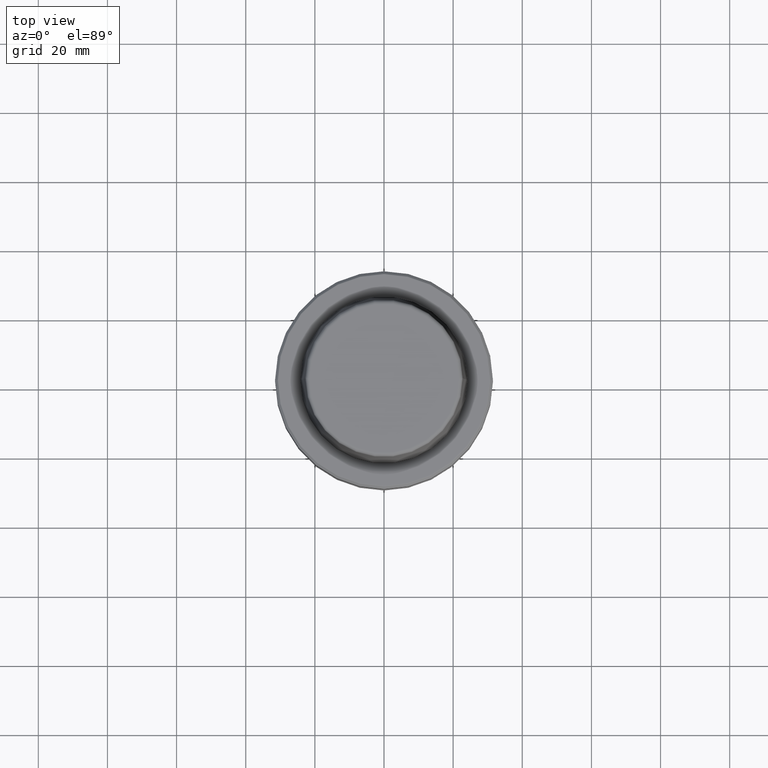
[diagram: clean part render]
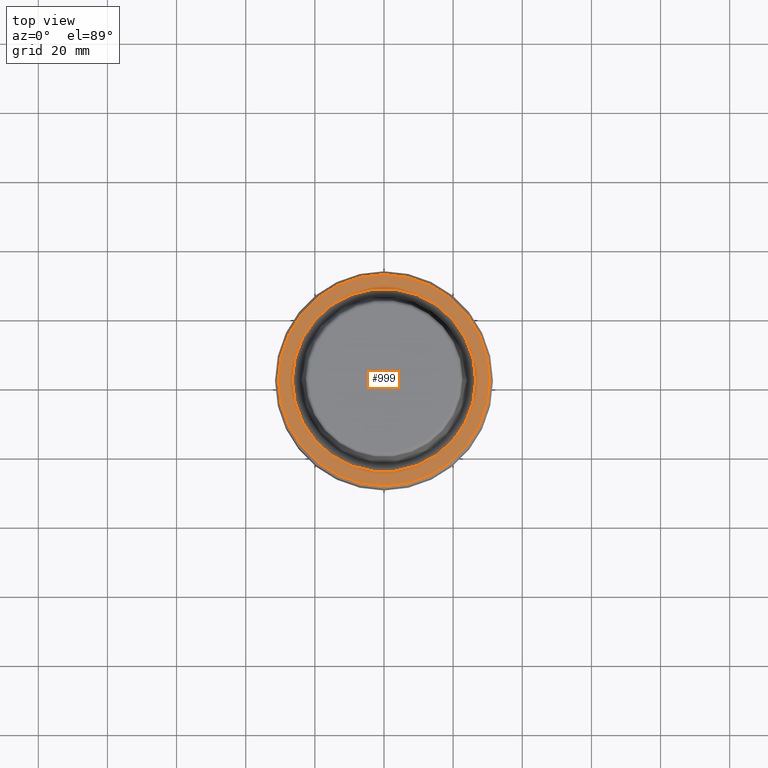
[diagram: same view with one face highlighted and labeled with its STEP entity id]
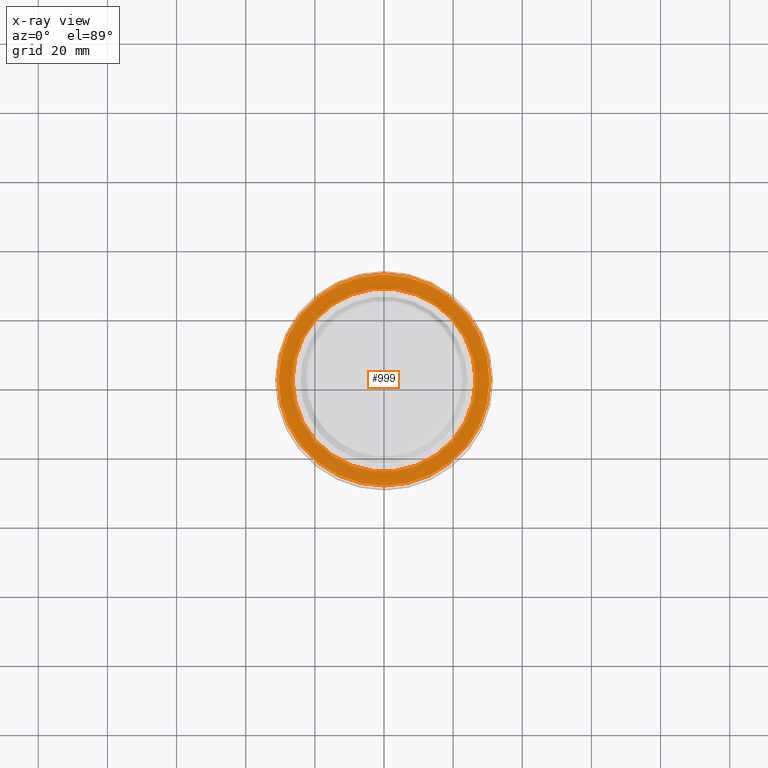
[diagram: x-ray of the same camera — body ghosted, the highlighted face saturated]
A machine part, top view. The second image highlights one B-rep face of the part: STEP entity #999.
The next image is the same camera in x-ray: the body ghosted, the highlighted face saturated — about 0% of this face is hidden behind the body in this view.
In plain terms, the highlighted planar face has unit normal (0, 0, -1).
Its self-contained STEP definition (entity closure, byte-faithful):
#18 = PLANE ( 'NONE',  #1041 ) ;
#76 = CARTESIAN_POINT ( 'NONE',  ( 0.0000000000000000000, 26.52499999999999900, -1.111307226797642000E-015 ) ) ;
#84 = EDGE_LOOP ( 'NONE', ( #805, #699 ) ) ;
#127 = AXIS2_PLACEMENT_3D ( 'NONE', #256, #706, #836 ) ;
#131 = DIRECTION ( 'NONE',  ( 1.000000000000000000, 0.0000000000000000000, 0.0000000000000000000 ) ) ;
#240 = FACE_BOUND ( 'NONE', #84, .T. ) ;
#256 = CARTESIAN_POINT ( 'NONE',  ( 0.0000000000000000000, 0.0000000000000000000, 0.0000000000000000000 ) ) ;
#268 = ORIENTED_EDGE ( 'NONE', *, *, #501, .T. ) ;
#292 = VERTEX_POINT ( 'NONE', #1258 ) ;
#302 = EDGE_CURVE ( 'NONE', #1160, #1234, #873, .T. ) ;
#339 = EDGE_CURVE ( 'NONE', #292, #520, #797, .T. ) ;
#410 = EDGE_LOOP ( 'NONE', ( #733, #268 ) ) ;
#442 = DIRECTION ( 'NONE',  ( -0.0000000000000000000, -0.0000000000000000000, 1.000000000000000000 ) ) ;
#445 = DIRECTION ( 'NONE',  ( -0.0000000000000000000, -0.0000000000000000000, 1.000000000000000000 ) ) ;
#501 = EDGE_CURVE ( 'NONE', #1234, #1160, #844, .T. ) ;
#520 = VERTEX_POINT ( 'NONE', #1203 ) ;
#571 = CARTESIAN_POINT ( 'NONE',  ( 0.0000000000000000000, 0.0000000000000000000, 0.0000000000000000000 ) ) ;
#687 = DIRECTION ( 'NONE',  ( 0.0000000000000000000, 0.0000000000000000000, -1.000000000000000000 ) ) ;
#699 = ORIENTED_EDGE ( 'NONE', *, *, #339, .F. ) ;
#706 = DIRECTION ( 'NONE',  ( -0.0000000000000000000, -0.0000000000000000000, 1.000000000000000000 ) ) ;
#733 = ORIENTED_EDGE ( 'NONE', *, *, #302, .T. ) ;
#740 = CARTESIAN_POINT ( 'NONE',  ( 0.0000000000000000000, 0.0000000000000000000, 0.0000000000000000000 ) ) ;
#782 = DIRECTION ( 'NONE',  ( 1.000000000000000000, 0.0000000000000000000, 0.0000000000000000000 ) ) ;
#797 = CIRCLE ( 'NONE', #947, 26.52499999999999900 ) ;
#805 = ORIENTED_EDGE ( 'NONE', *, *, #1072, .F. ) ;
#817 = CARTESIAN_POINT ( 'NONE',  ( 30.53431457505076100, 0.0000000000000000000, 0.0000000000000000000 ) ) ;
#836 = DIRECTION ( 'NONE',  ( 1.000000000000000000, 0.0000000000000000000, 0.0000000000000000000 ) ) ;
#844 = CIRCLE ( 'NONE', #1192, 30.53431457505076100 ) ;
#873 = CIRCLE ( 'NONE', #1022, 30.53431457505076100 ) ;
#880 = CARTESIAN_POINT ( 'NONE',  ( -30.53431457505076100, 3.756694181974138600E-015, 0.0000000000000000000 ) ) ;
#947 = AXIS2_PLACEMENT_3D ( 'NONE', #571, #442, #131 ) ;
#981 = DIRECTION ( 'NONE',  ( -0.0000000000000000000, -0.0000000000000000000, 1.000000000000000000 ) ) ;
#999 = ADVANCED_FACE ( 'NONE', ( #240, #1105 ), #18, .F. ) ;
#1000 = DIRECTION ( 'NONE',  ( 1.000000000000000000, 0.0000000000000000000, 0.0000000000000000000 ) ) ;
#1007 = CARTESIAN_POINT ( 'NONE',  ( 0.0000000000000000000, 0.0000000000000000000, 0.0000000000000000000 ) ) ;
#1015 = DIRECTION ( 'NONE',  ( -1.000000000000000000, 0.0000000000000000000, -0.0000000000000000000 ) ) ;
#1022 = AXIS2_PLACEMENT_3D ( 'NONE', #740, #981, #782 ) ;
#1041 = AXIS2_PLACEMENT_3D ( 'NONE', #76, #687, #1015 ) ;
#1062 = CIRCLE ( 'NONE', #127, 26.52499999999999900 ) ;
#1072 = EDGE_CURVE ( 'NONE', #520, #292, #1062, .T. ) ;
#1105 = FACE_OUTER_BOUND ( 'NONE', #410, .T. ) ;
#1160 = VERTEX_POINT ( 'NONE', #817 ) ;
#1192 = AXIS2_PLACEMENT_3D ( 'NONE', #1007, #445, #1000 ) ;
#1203 = CARTESIAN_POINT ( 'NONE',  ( 26.52499999999999900, 0.0000000000000000000, 0.0000000000000000000 ) ) ;
#1234 = VERTEX_POINT ( 'NONE', #880 ) ;
#1258 = CARTESIAN_POINT ( 'NONE',  ( -26.52499999999999900, 3.248375634738354300E-015, 0.0000000000000000000 ) ) ;